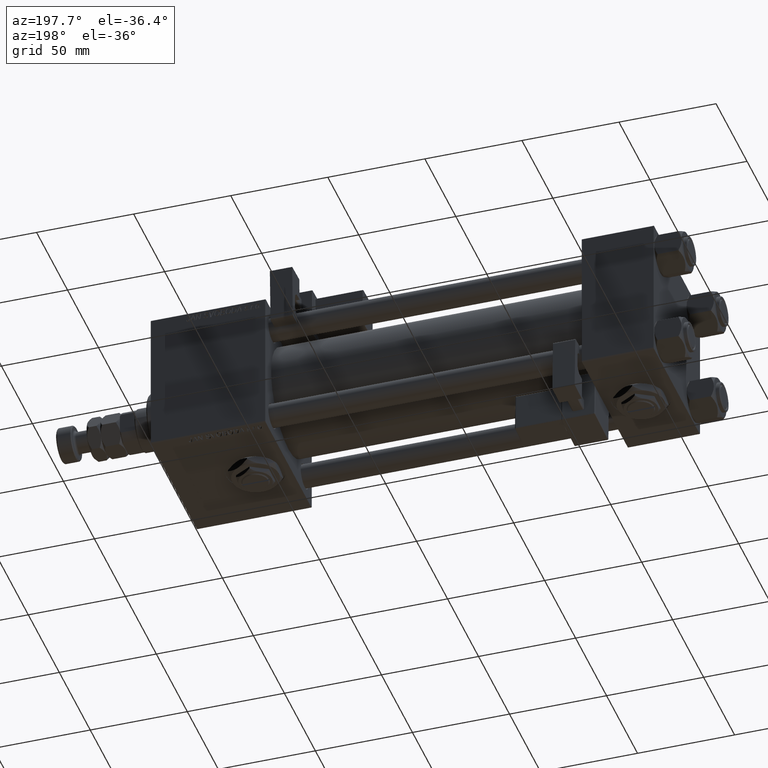
[diagram: clean part render]
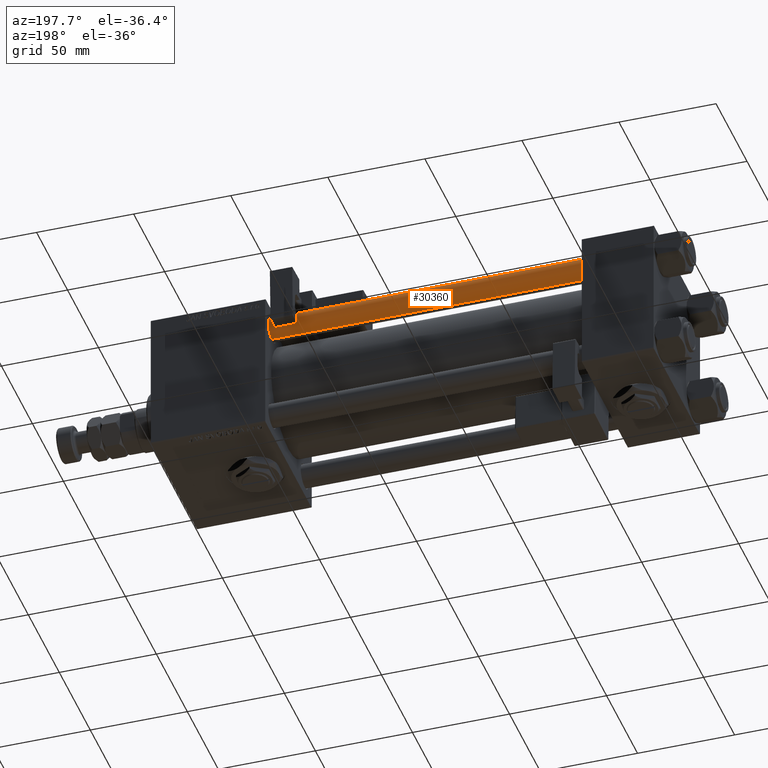
[diagram: same view with one face highlighted and labeled with its STEP entity id]
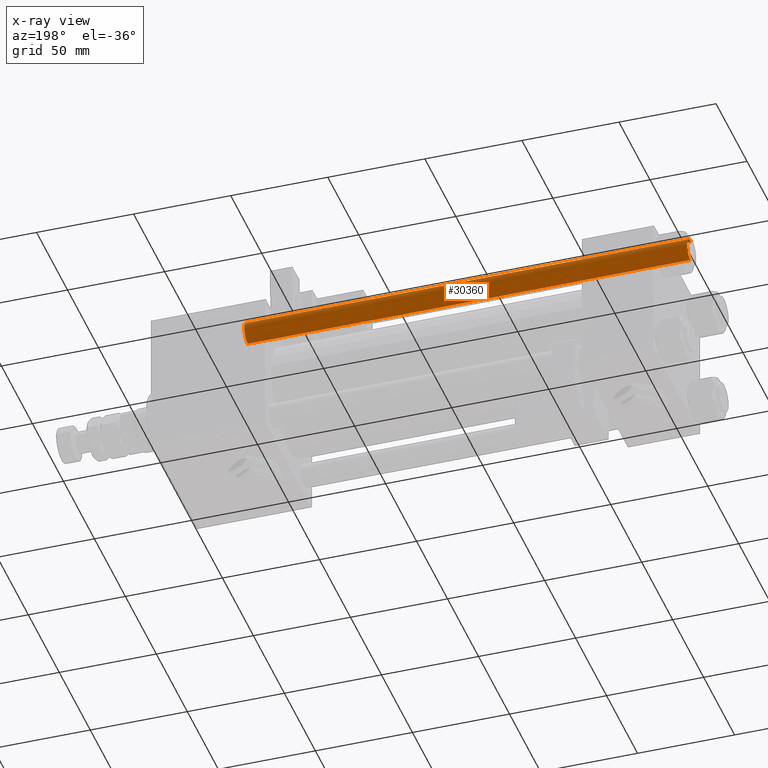
[diagram: x-ray of the same camera — body ghosted, the highlighted face saturated]
A machine part, auxiliary view. The second image highlights one B-rep face of the part: STEP entity #30360.
The next image is the same camera in x-ray: the body ghosted, the highlighted face saturated — about 0% of this face is hidden behind the body in this view.
In plain terms, the highlighted cylindrical surface (edge-blend (fillet) strip) has radius 6 mm, axis along (-1, 0, 0).
Its self-contained STEP definition (entity closure, byte-faithful):
#585 = CIRCLE ( 'NONE', #41397, 6.000000000000000888 ) ;
#854 = CARTESIAN_POINT ( 'NONE',  ( 0.000000000000000000, 0.000000000000000000, 228.5000000000001137 ) ) ;
#910 = DIRECTION ( 'NONE',  ( -1.000000000000000000, 0.000000000000000000, 0.000000000000000000 ) ) ;
#2325 = ORIENTED_EDGE ( 'NONE', *, *, #40872, .F. ) ;
#2653 = EDGE_CURVE ( 'NONE', #33999, #5685, #585, .T. ) ;
#2797 = AXIS2_PLACEMENT_3D ( 'NONE', #43262, #21619, #13112 ) ;
#3009 = VERTEX_POINT ( 'NONE', #42618 ) ;
#4773 = CARTESIAN_POINT ( 'NONE',  ( 6.000000000000000888, 7.347880794884119736E-16, 229.0000000000000000 ) ) ;
#5389 = DIRECTION ( 'NONE',  ( 0.000000000000000000, 0.000000000000000000, -1.000000000000000000 ) ) ;
#5685 = VERTEX_POINT ( 'NONE', #49864 ) ;
#11622 = CARTESIAN_POINT ( 'NONE',  ( 6.000000000000000888, 7.347880794884119736E-16, 0.5000000000001392220 ) ) ;
#13112 = DIRECTION ( 'NONE',  ( 1.000000000000000000, 0.000000000000000000, 0.000000000000000000 ) ) ;
#14398 = EDGE_CURVE ( 'NONE', #53593, #3009, #44572, .T. ) ;
#14401 = VECTOR ( 'NONE', #44283, 1000.000000000000000 ) ;
#15033 = DIRECTION ( 'NONE',  ( 1.000000000000000000, 0.000000000000000000, 0.000000000000000000 ) ) ;
#17939 = FACE_OUTER_BOUND ( 'NONE', #43538, .T. ) ;
#18488 = VECTOR ( 'NONE', #55072, 1000.000000000000000 ) ;
#19866 = ORIENTED_EDGE ( 'NONE', *, *, #2653, .T. ) ;
#20905 = AXIS2_PLACEMENT_3D ( 'NONE', #31578, #22475, #910 ) ;
#21619 = DIRECTION ( 'NONE',  ( -0.000000000000000000, -0.000000000000000000, 1.000000000000000000 ) ) ;
#22475 = DIRECTION ( 'NONE',  ( -0.000000000000000000, -0.000000000000000000, -1.000000000000000000 ) ) ;
#30360 = ADVANCED_FACE ( 'NONE', ( #17939 ), #35297, .T. ) ;
#30373 = ORIENTED_EDGE ( 'NONE', *, *, #14398, .T. ) ;
#31578 = CARTESIAN_POINT ( 'NONE',  ( 0.000000000000000000, 0.000000000000000000, 229.0000000000000000 ) ) ;
#33999 = VERTEX_POINT ( 'NONE', #44099 ) ;
#35297 = CYLINDRICAL_SURFACE ( 'NONE', #20905, 6.000000000000000888 ) ;
#39720 = LINE ( 'NONE', #4773, #14401 ) ;
#39995 = ORIENTED_EDGE ( 'NONE', *, *, #55319, .T. ) ;
#40872 = EDGE_CURVE ( 'NONE', #33999, #3009, #49681, .T. ) ;
#41397 = AXIS2_PLACEMENT_3D ( 'NONE', #854, #5389, #15033 ) ;
#42618 = CARTESIAN_POINT ( 'NONE',  ( -6.000000000000000888, 0.000000000000000000, 0.5000000000001392220 ) ) ;
#43262 = CARTESIAN_POINT ( 'NONE',  ( 0.000000000000000000, 0.000000000000000000, 0.5000000000001392220 ) ) ;
#43538 = EDGE_LOOP ( 'NONE', ( #19866, #39995, #30373, #2325 ) ) ;
#44099 = CARTESIAN_POINT ( 'NONE',  ( -6.000000000000000888, 0.000000000000000000, 228.5000000000001137 ) ) ;
#44283 = DIRECTION ( 'NONE',  ( -0.000000000000000000, -0.000000000000000000, -1.000000000000000000 ) ) ;
#44572 = CIRCLE ( 'NONE', #2797, 6.000000000000000888 ) ;
#45410 = CARTESIAN_POINT ( 'NONE',  ( -6.000000000000000888, 0.000000000000000000, 229.0000000000000000 ) ) ;
#49681 = LINE ( 'NONE', #45410, #18488 ) ;
#49864 = CARTESIAN_POINT ( 'NONE',  ( 6.000000000000000888, 7.347880794884119736E-16, 228.5000000000001137 ) ) ;
#53593 = VERTEX_POINT ( 'NONE', #11622 ) ;
#55072 = DIRECTION ( 'NONE',  ( -0.000000000000000000, -0.000000000000000000, -1.000000000000000000 ) ) ;
#55319 = EDGE_CURVE ( 'NONE', #5685, #53593, #39720, .T. ) ;